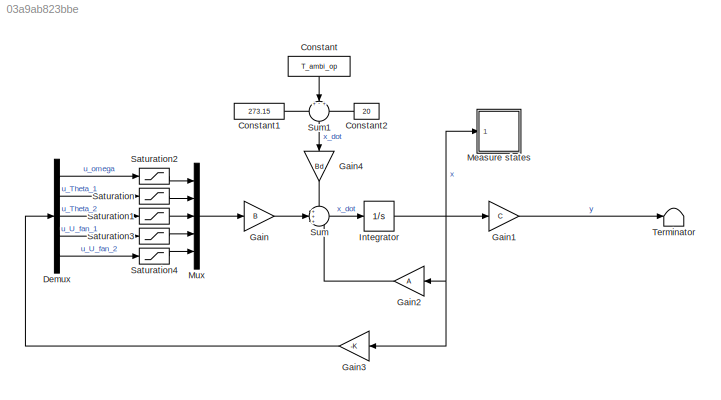
MODEL slx_03a9ab823bbe
KIND model
CONFIG AbsTol = auto
CONFIG EnableMultiTasking = off
CONFIG FixedStep = auto
CONFIG MaxStep = auto
CONFIG MinStep = auto
CONFIG RelTol = 1e-3
CONFIG SampleTimeConstraint = Unconstrained
CONFIG SolverName = VariableStepAuto
CONFIG StartTime = 0.0
CONFIG StopTime = 100000.0
BLOCK [Constant] Constant
  NameLocation = left
  Value = T_ambi_op
BLOCK [Constant] Constant1
  Value = 273.15
  VectorParams1D = off
BLOCK [Constant] Constant2
  NameLocation = top
  Value = 20
  VectorParams1D = off
BLOCK [Demux] Demux
  Outputs = 5
  Ports = [1, 5]
BLOCK [Gain] Gain
  Gain = B
  Multiplication = Matrix(K*u)
BLOCK [Gain] Gain1
  Gain = C
  Multiplication = Matrix(K*u)
BLOCK [Gain] Gain2
  Gain = A
  Multiplication = Matrix(K*u)
  NameLocation = top
BLOCK [Gain] Gain3
  Gain = -K
  Multiplication = Matrix(K*u)
  NameLocation = top
BLOCK [Gain] Gain4
  Gain = Bd
  Multiplication = Matrix(K*u)
  NameLocation = left
BLOCK [Integrator] Integrator
  InitialCondition = ones(9,1)
  Ports = [1, 1]
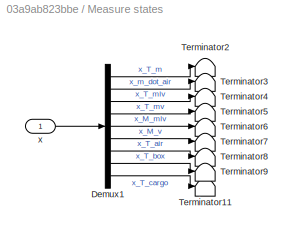
BLOCK [SubSystem] Measure states
  Ports = [1]
  RequestExecContextInheritance = off
BLOCK [Demux] Measure states/Demux1
  Outputs = 9
  Ports = [1, 9]
BLOCK [Terminator] Measure states/Terminator11
BLOCK [Terminator] Measure states/Terminator2
BLOCK [Terminator] Measure states/Terminator3
BLOCK [Terminator] Measure states/Terminator4
BLOCK [Terminator] Measure states/Terminator5
BLOCK [Terminator] Measure states/Terminator6
BLOCK [Terminator] Measure states/Terminator7
BLOCK [Terminator] Measure states/Terminator8
BLOCK [Terminator] Measure states/Terminator9
BLOCK [Inport] Measure states/x
BLOCK [Mux] Mux
  DisplayOption = bar
  Inputs = 5
  Ports = [5, 1]
BLOCK [Saturate] Saturation
  LowerLimit = -Theta_1_op
  UpperLimit = 1-Theta_1_op
BLOCK [Saturate] Saturation1
  LowerLimit = -Theta_2_op
  UpperLimit = 1-Theta_2_op
BLOCK [Saturate] Saturation2
  LowerLimit = -omega_op
  UpperLimit = 100-omega_op
BLOCK [Saturate] Saturation3
  LowerLimit = -U_fan_1_op
  UpperLimit = 3600-U_fan_1_op
BLOCK [Saturate] Saturation4
  LowerLimit = -U_fan_2_op
  UpperLimit = 3600-U_fan_2_op
BLOCK [Sum] Sum
  Inputs = +++
  Ports = [3, 1]
BLOCK [Sum] Sum1
  Inputs = +-+
  NameLocation = left
  Ports = [3, 1]
BLOCK [Terminator] Terminator
LINE Constant1:1 -> Sum1:1
LINE Constant2:1 -> Sum1:3
LINE Constant:1 -> Sum1:2
LINE Demux:1 -> Saturation2:1
LINE Demux:2 -> Saturation:1
LINE Demux:3 -> Saturation1:1
LINE Demux:4 -> Saturation3:1
LINE Demux:5 -> Saturation4:1
LINE Gain1:1 -> Terminator:1
LINE Gain2:1 -> Sum:3
LINE Gain3:1 -> Demux:1
LINE Gain4:1 -> Sum:1
LINE Gain:1 -> Sum:2
NET Integrator:1 -> Gain1:1, Gain2:1, Gain3:1, Measure states:1
LINE Measure states/Demux1:1 -> Measure states/Terminator2:1
LINE Measure states/Demux1:2 -> Measure states/Terminator3:1
LINE Measure states/Demux1:3 -> Measure states/Terminator4:1
LINE Measure states/Demux1:4 -> Measure states/Terminator5:1
LINE Measure states/Demux1:5 -> Measure states/Terminator6:1
LINE Measure states/Demux1:6 -> Measure states/Terminator7:1
LINE Measure states/Demux1:7 -> Measure states/Terminator8:1
LINE Measure states/Demux1:8 -> Measure states/Terminator9:1
LINE Measure states/Demux1:9 -> Measure states/Terminator11:1
LINE Measure states/x:1 -> Measure states/Demux1:1
LINE Mux:1 -> Gain:1
LINE Saturation1:1 -> Mux:3
LINE Saturation2:1 -> Mux:1
LINE Saturation3:1 -> Mux:4
LINE Saturation4:1 -> Mux:5
LINE Saturation:1 -> Mux:2
LINE Sum1:1 -> Gain4:1
LINE Sum:1 -> Integrator:1
note: NET lines group one-source signal fan-out (src -> all destinations, sorted); 1:1 wires keep LINE
